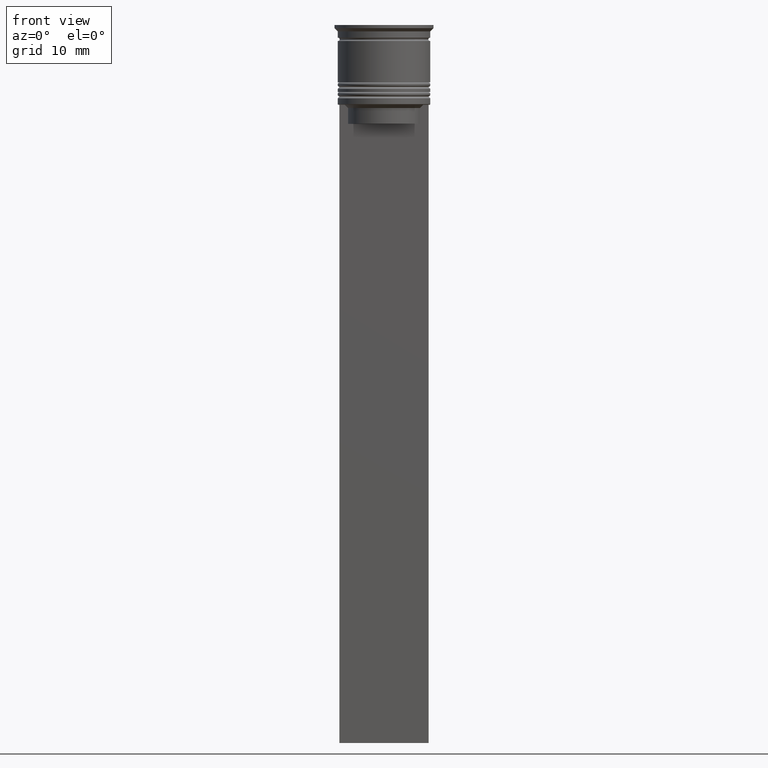
[diagram: clean part render]
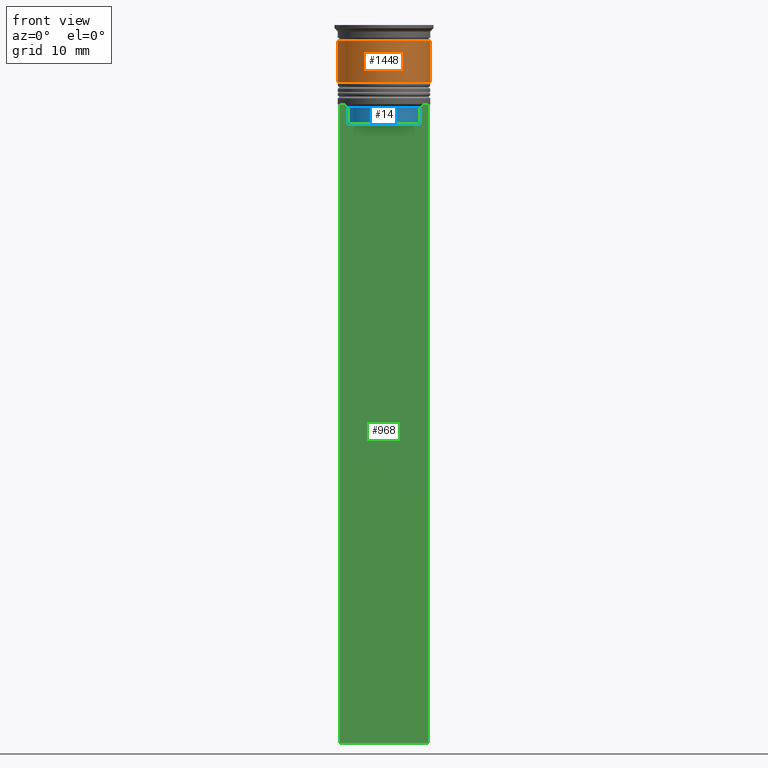
[diagram: same view with three faces highlighted in distinct colors, each labeled with its STEP entity id]
A machine part, front view with three faces highlighted in distinct colors.
Their STEP definitions:

[orange] entity #1448 — the highlighted cylindrical surface (partial cylindrical patch) has radius 7.25 mm, axis along (-0, -0, 1).
#16 = CARTESIAN_POINT ( 'NONE',  ( -7.249999999999999112, 8.878689293818310074E-16, 0.000000000000000000 ) ) ;
#67 = AXIS2_PLACEMENT_3D ( 'NONE', #1280, #387, #923 ) ;
#88 = EDGE_CURVE ( 'NONE', #442, #1920, #2226, .T. ) ;
#387 = DIRECTION ( 'NONE',  ( -0.000000000000000000, -0.000000000000000000, 1.000000000000000000 ) ) ;
#403 = DIRECTION ( 'NONE',  ( -0.000000000000000000, -0.000000000000000000, 1.000000000000000000 ) ) ;
#406 = EDGE_LOOP ( 'NONE', ( #1868, #2076, #1213, #1885 ) ) ;
#442 = VERTEX_POINT ( 'NONE', #1310 ) ;
#479 = AXIS2_PLACEMENT_3D ( 'NONE', #791, #403, #581 ) ;
#548 = VECTOR ( 'NONE', #1529, 1000.000000000000000 ) ;
#566 = CARTESIAN_POINT ( 'NONE',  ( 7.249999999999997335, 0.000000000000000000, -2.500000000000000444 ) ) ;
#581 = DIRECTION ( 'NONE',  ( 1.000000000000000000, 0.000000000000000000, 0.000000000000000000 ) ) ;
#717 = LINE ( 'NONE', #1789, #2204 ) ;
#759 = CARTESIAN_POINT ( 'NONE',  ( -7.249999999999997335, 8.878689293818308102E-16, -2.500000000000000444 ) ) ;
#777 = CIRCLE ( 'NONE', #67, 7.249999999999997335 ) ;
#791 = CARTESIAN_POINT ( 'NONE',  ( 0.000000000000000000, 0.000000000000000000, 0.000000000000000000 ) ) ;
#833 = VERTEX_POINT ( 'NONE', #566 ) ;
#898 = EDGE_CURVE ( 'NONE', #442, #1414, #2031, .T. ) ;
#923 = DIRECTION ( 'NONE',  ( 1.000000000000000000, 0.000000000000000000, 0.000000000000000000 ) ) ;
#1062 = CARTESIAN_POINT ( 'NONE',  ( 0.000000000000000000, 0.000000000000000000, -9.000000000000001776 ) ) ;
#1129 = CARTESIAN_POINT ( 'NONE',  ( 7.250000000000000888, 0.000000000000000000, -9.000000000000001776 ) ) ;
#1213 = ORIENTED_EDGE ( 'NONE', *, *, #2184, .T. ) ;
#1244 = EDGE_CURVE ( 'NONE', #1414, #833, #777, .T. ) ;
#1280 = CARTESIAN_POINT ( 'NONE',  ( 0.000000000000000000, 0.000000000000000000, -2.500000000000000444 ) ) ;
#1306 = CYLINDRICAL_SURFACE ( 'NONE', #479, 7.249999999999999112 ) ;
#1310 = CARTESIAN_POINT ( 'NONE',  ( -7.250000000000000888, 8.878689293818312046E-16, -9.000000000000001776 ) ) ;
#1414 = VERTEX_POINT ( 'NONE', #759 ) ;
#1433 = DIRECTION ( 'NONE',  ( 1.000000000000000000, 0.000000000000000000, 0.000000000000000000 ) ) ;
#1448 = ADVANCED_FACE ( 'NONE', ( #2207 ), #1306, .T. ) ;
#1451 = DIRECTION ( 'NONE',  ( -0.000000000000000000, -0.000000000000000000, 1.000000000000000000 ) ) ;
#1529 = DIRECTION ( 'NONE',  ( -0.000000000000000000, -0.000000000000000000, 1.000000000000000000 ) ) ;
#1774 = AXIS2_PLACEMENT_3D ( 'NONE', #1062, #2171, #1433 ) ;
#1789 = CARTESIAN_POINT ( 'NONE',  ( 7.249999999999999112, 0.000000000000000000, 0.000000000000000000 ) ) ;
#1868 = ORIENTED_EDGE ( 'NONE', *, *, #898, .F. ) ;
#1885 = ORIENTED_EDGE ( 'NONE', *, *, #1244, .F. ) ;
#1920 = VERTEX_POINT ( 'NONE', #1129 ) ;
#2031 = LINE ( 'NONE', #16, #548 ) ;
#2076 = ORIENTED_EDGE ( 'NONE', *, *, #88, .T. ) ;
#2171 = DIRECTION ( 'NONE',  ( -0.000000000000000000, -0.000000000000000000, 1.000000000000000000 ) ) ;
#2184 = EDGE_CURVE ( 'NONE', #1920, #833, #717, .T. ) ;
#2204 = VECTOR ( 'NONE', #1451, 1000.000000000000000 ) ;
#2207 = FACE_OUTER_BOUND ( 'NONE', #406, .T. ) ;
#2226 = CIRCLE ( 'NONE', #1774, 7.250000000000000888 ) ;

[blue] entity #14 — the highlighted cylindrical surface (edge-blend (fillet) strip) has radius 5.65 mm, axis along (-0, -0, 1).
#14 = ADVANCED_FACE ( 'NONE', ( #1594 ), #1943, .T. ) ;
#53 = ORIENTED_EDGE ( 'NONE', *, *, #774, .T. ) ;
#149 = DIRECTION ( 'NONE',  ( -0.000000000000000000, -0.000000000000000000, 1.000000000000000000 ) ) ;
#153 = LINE ( 'NONE', #1792, #545 ) ;
#189 = DIRECTION ( 'NONE',  ( 0.000000000000000000, 0.000000000000000000, -1.000000000000000000 ) ) ;
#237 = DIRECTION ( 'NONE',  ( 1.000000000000000000, 0.000000000000000000, 0.000000000000000000 ) ) ;
#268 = VERTEX_POINT ( 'NONE', #1063 ) ;
#332 = CARTESIAN_POINT ( 'NONE',  ( 0.000000000000000000, 0.000000000000000000, 0.000000000000000000 ) ) ;
#502 = DIRECTION ( 'NONE',  ( -0.000000000000000000, -0.000000000000000000, 1.000000000000000000 ) ) ;
#545 = VECTOR ( 'NONE', #189, 1000.000000000000000 ) ;
#609 = DIRECTION ( 'NONE',  ( -0.000000000000000000, -0.000000000000000000, 1.000000000000000000 ) ) ;
#622 = ORIENTED_EDGE ( 'NONE', *, *, #2153, .T. ) ;
#730 = DIRECTION ( 'NONE',  ( 1.000000000000000000, 0.000000000000000000, 0.000000000000000000 ) ) ;
#774 = EDGE_CURVE ( 'NONE', #268, #1908, #1611, .T. ) ;
#819 = ORIENTED_EDGE ( 'NONE', *, *, #1734, .T. ) ;
#966 = VERTEX_POINT ( 'NONE', #1336 ) ;
#1047 = DIRECTION ( 'NONE',  ( 1.000000000000000000, 0.000000000000000000, 0.000000000000000000 ) ) ;
#1063 = CARTESIAN_POINT ( 'NONE',  ( -5.627832620112292794, -0.5000000000000022204, -15.50000000000000000 ) ) ;
#1118 = CARTESIAN_POINT ( 'NONE',  ( 0.000000000000000000, 0.000000000000000000, -15.50000000000000000 ) ) ;
#1209 = CARTESIAN_POINT ( 'NONE',  ( -5.627832620112292794, -0.5000000000000022204, -13.00000000000000000 ) ) ;
#1232 = AXIS2_PLACEMENT_3D ( 'NONE', #1118, #2205, #730 ) ;
#1336 = CARTESIAN_POINT ( 'NONE',  ( 5.627832620112292794, -0.5000000000000022204, -13.00000000000000000 ) ) ;
#1370 = VECTOR ( 'NONE', #149, 1000.000000000000000 ) ;
#1393 = AXIS2_PLACEMENT_3D ( 'NONE', #2239, #609, #237 ) ;
#1416 = EDGE_CURVE ( 'NONE', #2014, #966, #2337, .T. ) ;
#1429 = LINE ( 'NONE', #1764, #1370 ) ;
#1594 = FACE_OUTER_BOUND ( 'NONE', #1737, .T. ) ;
#1611 = CIRCLE ( 'NONE', #1232, 5.649999999999998579 ) ;
#1696 = AXIS2_PLACEMENT_3D ( 'NONE', #332, #502, #1047 ) ;
#1734 = EDGE_CURVE ( 'NONE', #2014, #268, #153, .T. ) ;
#1737 = EDGE_LOOP ( 'NONE', ( #53, #622, #1873, #819 ) ) ;
#1764 = CARTESIAN_POINT ( 'NONE',  ( 5.627832620112292794, -0.5000000000000022204, 0.000000000000000000 ) ) ;
#1792 = CARTESIAN_POINT ( 'NONE',  ( -5.627832620112292794, -0.5000000000000022204, 0.000000000000000000 ) ) ;
#1873 = ORIENTED_EDGE ( 'NONE', *, *, #1416, .F. ) ;
#1908 = VERTEX_POINT ( 'NONE', #2012 ) ;
#1943 = CYLINDRICAL_SURFACE ( 'NONE', #1696, 5.649999999999998579 ) ;
#2012 = CARTESIAN_POINT ( 'NONE',  ( 5.627832620112292794, -0.5000000000000022204, -15.50000000000000000 ) ) ;
#2014 = VERTEX_POINT ( 'NONE', #1209 ) ;
#2153 = EDGE_CURVE ( 'NONE', #1908, #966, #1429, .T. ) ;
#2205 = DIRECTION ( 'NONE',  ( -0.000000000000000000, -0.000000000000000000, 1.000000000000000000 ) ) ;
#2239 = CARTESIAN_POINT ( 'NONE',  ( 0.000000000000000000, 0.000000000000000000, -13.00000000000000000 ) ) ;
#2337 = CIRCLE ( 'NONE', #1393, 5.649999999999997691 ) ;

[green] entity #968 — the highlighted planar face has unit normal (0, -1, -0).
#19 = B_SPLINE_CURVE_WITH_KNOTS ( 'NONE', 3,
 ( #500, #1719, #982, #801 ),
 .UNSPECIFIED., .F., .F.,
 ( 4, 4 ),
 ( 0.02651134470867370918, 0.02721991123504334531 ),
 .UNSPECIFIED. ) ;
#64 = CARTESIAN_POINT ( 'NONE',  ( -6.129641098791995368, -0.5000000000000022204, -12.50000000000000000 ) ) ;
#75 = PLANE ( 'NONE',  #696 ) ;
#84 = FACE_OUTER_BOUND ( 'NONE', #1923, .T. ) ;
#149 = DIRECTION ( 'NONE',  ( -0.000000000000000000, -0.000000000000000000, 1.000000000000000000 ) ) ;
#153 = LINE ( 'NONE', #1792, #545 ) ;
#162 = CARTESIAN_POINT ( 'NONE',  ( 7.000000000000012434, -0.5000000000000022204, -12.50000000000000000 ) ) ;
#184 = VECTOR ( 'NONE', #809, 1000.000000000000000 ) ;
#189 = DIRECTION ( 'NONE',  ( 0.000000000000000000, 0.000000000000000000, -1.000000000000000000 ) ) ;
#222 = LINE ( 'NONE', #1293, #733 ) ;
#268 = VERTEX_POINT ( 'NONE', #1063 ) ;
#294 = CARTESIAN_POINT ( 'NONE',  ( 7.000000000000012434, -0.5000000000000022204, 1.535668847618198329 ) ) ;
#295 = ORIENTED_EDGE ( 'NONE', *, *, #2153, .F. ) ;
#298 = ORIENTED_EDGE ( 'NONE', *, *, #837, .F. ) ;
#376 = CARTESIAN_POINT ( 'NONE',  ( -5.627832620112292794, -0.5000000000000022204, -13.00000000000000000 ) ) ;
#396 = ORIENTED_EDGE ( 'NONE', *, *, #1493, .F. ) ;
#420 = LINE ( 'NONE', #1813, #655 ) ;
#460 = ORIENTED_EDGE ( 'NONE', *, *, #2180, .F. ) ;
#500 = CARTESIAN_POINT ( 'NONE',  ( 5.627832620112292794, -0.5000000000000022204, -13.00000000000000000 ) ) ;
#545 = VECTOR ( 'NONE', #189, 1000.000000000000000 ) ;
#610 = VERTEX_POINT ( 'NONE', #2103 ) ;
#651 = ORIENTED_EDGE ( 'NONE', *, *, #1195, .F. ) ;
#655 = VECTOR ( 'NONE', #741, 1000.000000000000000 ) ;
#696 = AXIS2_PLACEMENT_3D ( 'NONE', #788, #797, #1350 ) ;
#733 = VECTOR ( 'NONE', #926, 1000.000000000000000 ) ;
#741 = DIRECTION ( 'NONE',  ( -1.000000000000000000, 0.000000000000000000, 0.000000000000000000 ) ) ;
#752 = EDGE_CURVE ( 'NONE', #1683, #2234, #222, .T. ) ;
#788 = CARTESIAN_POINT ( 'NONE',  ( 7.000000000000012434, -0.5000000000000022204, 1.535668847618198329 ) ) ;
#797 = DIRECTION ( 'NONE',  ( 0.000000000000000000, -1.000000000000000000, -0.000000000000000000 ) ) ;
#798 = B_SPLINE_CURVE_WITH_KNOTS ( 'NONE', 3,
 ( #64, #1485, #1503, #376 ),
 .UNSPECIFIED., .F., .F.,
 ( 4, 4 ),
 ( 0.01045365750109871796, 0.01116204421161398619 ),
 .UNSPECIFIED. ) ;
#801 = CARTESIAN_POINT ( 'NONE',  ( 6.129641098791995368, -0.5000000000000022204, -12.50000000000000000 ) ) ;
#809 = DIRECTION ( 'NONE',  ( 1.000000000000000000, 0.000000000000000000, 0.000000000000000000 ) ) ;
#823 = LINE ( 'NONE', #2075, #184 ) ;
#837 = EDGE_CURVE ( 'NONE', #610, #2014, #798, .T. ) ;
#848 = CARTESIAN_POINT ( 'NONE',  ( 7.000000000000012434, -0.5000000000000022204, -112.5000000000000000 ) ) ;
#853 = EDGE_CURVE ( 'NONE', #1347, #2234, #420, .T. ) ;
#918 = VECTOR ( 'NONE', #1628, 1000.000000000000000 ) ;
#926 = DIRECTION ( 'NONE',  ( 0.000000000000000000, 0.000000000000000000, -1.000000000000000000 ) ) ;
#936 = VECTOR ( 'NONE', #1821, 1000.000000000000000 ) ;
#966 = VERTEX_POINT ( 'NONE', #1336 ) ;
#968 = ADVANCED_FACE ( 'NONE', ( #84 ), #75, .T. ) ;
#971 = VECTOR ( 'NONE', #1894, 1000.000000000000000 ) ;
#982 = CARTESIAN_POINT ( 'NONE',  ( 5.962396079681182570, -0.5000000000000022204, -12.66669137279835766 ) ) ;
#1022 = EDGE_CURVE ( 'NONE', #268, #1908, #823, .T. ) ;
#1063 = CARTESIAN_POINT ( 'NONE',  ( -5.627832620112292794, -0.5000000000000022204, -15.50000000000000000 ) ) ;
#1078 = ORIENTED_EDGE ( 'NONE', *, *, #1022, .F. ) ;
#1187 = ORIENTED_EDGE ( 'NONE', *, *, #853, .F. ) ;
#1195 = EDGE_CURVE ( 'NONE', #1745, #2247, #1984, .T. ) ;
#1209 = CARTESIAN_POINT ( 'NONE',  ( -5.627832620112292794, -0.5000000000000022204, -13.00000000000000000 ) ) ;
#1236 = CARTESIAN_POINT ( 'NONE',  ( 6.129641098791995368, -0.5000000000000022204, -12.50000000000000000 ) ) ;
#1293 = CARTESIAN_POINT ( 'NONE',  ( -6.999999999999987566, -0.5000000000000022204, 1.535668847618198329 ) ) ;
#1336 = CARTESIAN_POINT ( 'NONE',  ( 5.627832620112292794, -0.5000000000000022204, -13.00000000000000000 ) ) ;
#1347 = VERTEX_POINT ( 'NONE', #848 ) ;
#1350 = DIRECTION ( 'NONE',  ( 0.000000000000000000, 0.000000000000000000, -1.000000000000000000 ) ) ;
#1370 = VECTOR ( 'NONE', #149, 1000.000000000000000 ) ;
#1429 = LINE ( 'NONE', #1764, #1370 ) ;
#1438 = ORIENTED_EDGE ( 'NONE', *, *, #752, .T. ) ;
#1440 = LINE ( 'NONE', #162, #918 ) ;
#1469 = CARTESIAN_POINT ( 'NONE',  ( -6.999999999999987566, -0.5000000000000022204, -112.5000000000000000 ) ) ;
#1485 = CARTESIAN_POINT ( 'NONE',  ( -5.962396146966409738, -0.5000000000000022204, -12.66669130573587054 ) ) ;
#1493 = EDGE_CURVE ( 'NONE', #2247, #1347, #1915, .T. ) ;
#1503 = CARTESIAN_POINT ( 'NONE',  ( -5.795128834036803234, -0.5000000000000022204, -12.83336016107156574 ) ) ;
#1522 = EDGE_CURVE ( 'NONE', #966, #1745, #19, .T. ) ;
#1628 = DIRECTION ( 'NONE',  ( 1.000000000000000000, 0.000000000000000000, 0.000000000000000000 ) ) ;
#1631 = CARTESIAN_POINT ( 'NONE',  ( 7.000000000000012434, -0.5000000000000022204, -12.50000000000000000 ) ) ;
#1645 = CARTESIAN_POINT ( 'NONE',  ( 7.000000000000012434, -0.5000000000000022204, -12.50000000000000000 ) ) ;
#1683 = VERTEX_POINT ( 'NONE', #1804 ) ;
#1700 = ORIENTED_EDGE ( 'NONE', *, *, #1522, .F. ) ;
#1719 = CARTESIAN_POINT ( 'NONE',  ( 5.795128760752288777, -0.5000000000000022204, -12.83336023406855375 ) ) ;
#1730 = ORIENTED_EDGE ( 'NONE', *, *, #1734, .F. ) ;
#1734 = EDGE_CURVE ( 'NONE', #2014, #268, #153, .T. ) ;
#1745 = VERTEX_POINT ( 'NONE', #1236 ) ;
#1764 = CARTESIAN_POINT ( 'NONE',  ( 5.627832620112292794, -0.5000000000000022204, 0.000000000000000000 ) ) ;
#1792 = CARTESIAN_POINT ( 'NONE',  ( -5.627832620112292794, -0.5000000000000022204, 0.000000000000000000 ) ) ;
#1804 = CARTESIAN_POINT ( 'NONE',  ( -6.999999999999987566, -0.5000000000000022204, -12.50000000000000000 ) ) ;
#1813 = CARTESIAN_POINT ( 'NONE',  ( 7.000000000000012434, -0.5000000000000022204, -112.5000000000000000 ) ) ;
#1821 = DIRECTION ( 'NONE',  ( 1.000000000000000000, 0.000000000000000000, 0.000000000000000000 ) ) ;
#1894 = DIRECTION ( 'NONE',  ( 0.000000000000000000, 0.000000000000000000, -1.000000000000000000 ) ) ;
#1908 = VERTEX_POINT ( 'NONE', #2012 ) ;
#1915 = LINE ( 'NONE', #294, #971 ) ;
#1923 = EDGE_LOOP ( 'NONE', ( #298, #460, #1438, #1187, #396, #651, #1700, #295, #1078, #1730 ) ) ;
#1984 = LINE ( 'NONE', #1645, #936 ) ;
#2012 = CARTESIAN_POINT ( 'NONE',  ( 5.627832620112292794, -0.5000000000000022204, -15.50000000000000000 ) ) ;
#2014 = VERTEX_POINT ( 'NONE', #1209 ) ;
#2075 = CARTESIAN_POINT ( 'NONE',  ( 0.000000000000000000, -0.5000000000000022204, -15.50000000000000000 ) ) ;
#2103 = CARTESIAN_POINT ( 'NONE',  ( -6.129641098791995368, -0.5000000000000022204, -12.50000000000000000 ) ) ;
#2153 = EDGE_CURVE ( 'NONE', #1908, #966, #1429, .T. ) ;
#2180 = EDGE_CURVE ( 'NONE', #1683, #610, #1440, .T. ) ;
#2234 = VERTEX_POINT ( 'NONE', #1469 ) ;
#2247 = VERTEX_POINT ( 'NONE', #1631 ) ;